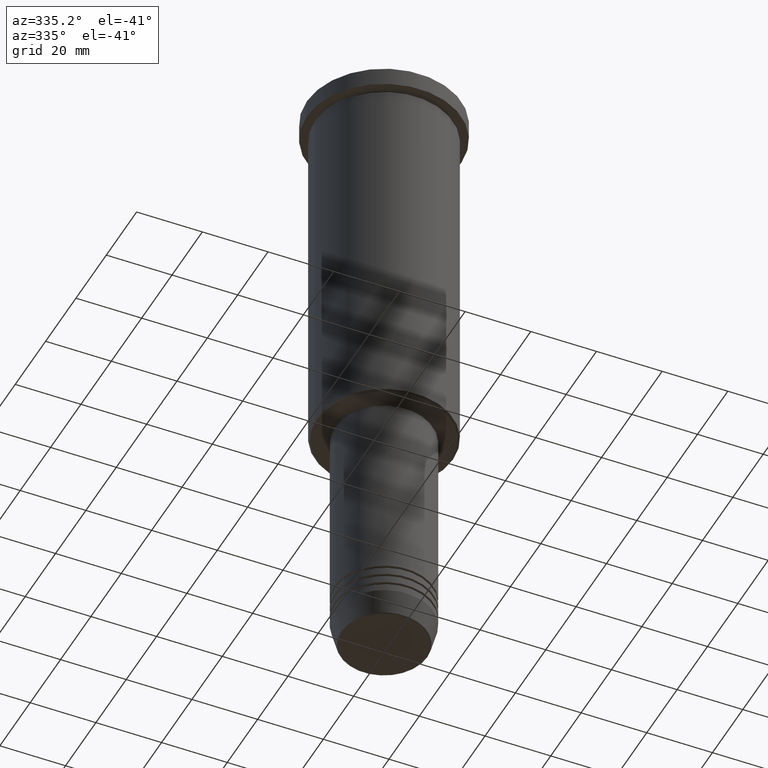
[diagram: clean part render]
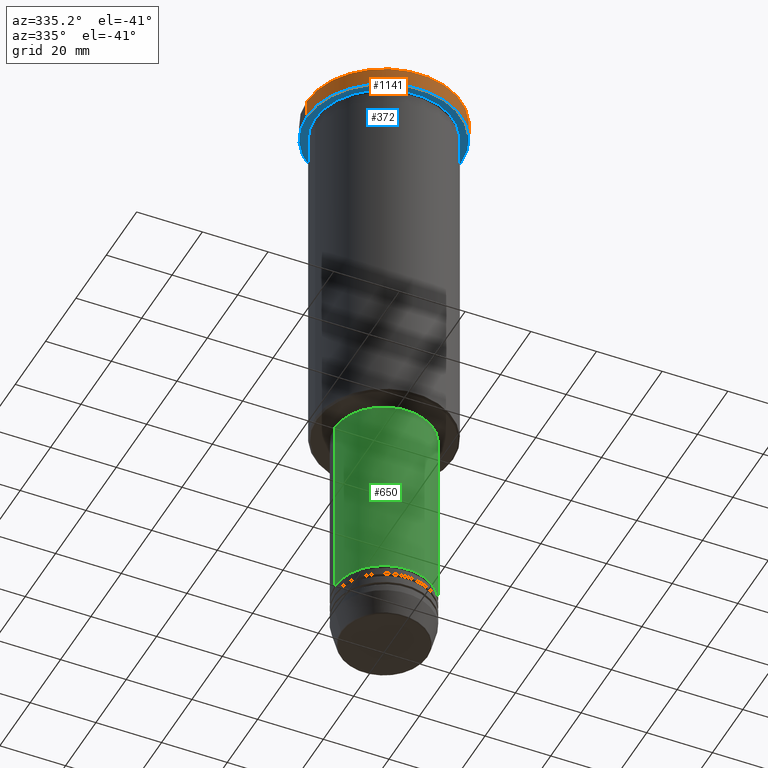
[diagram: same view with three faces highlighted in distinct colors, each labeled with its STEP entity id]
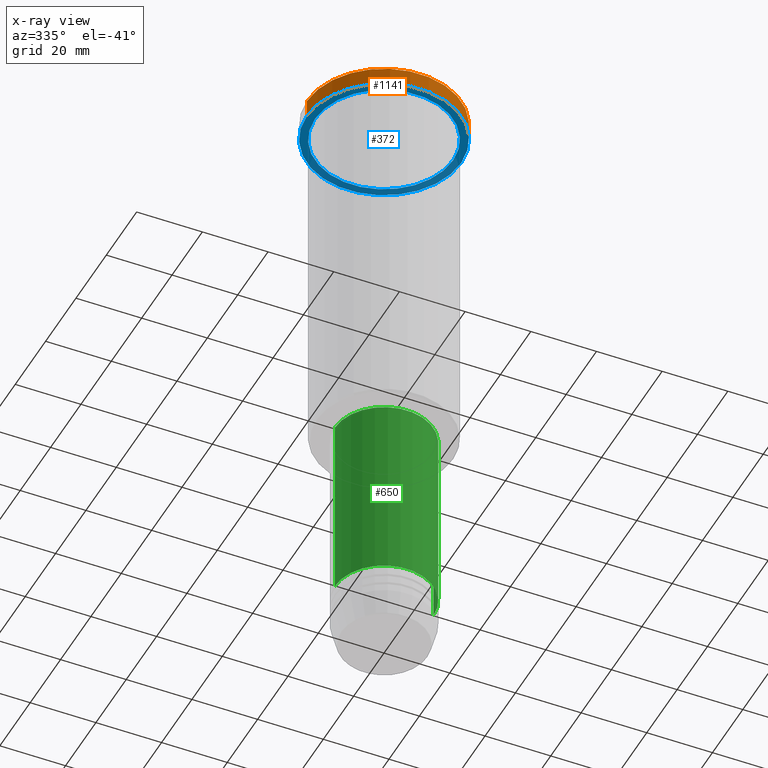
[diagram: x-ray of the same camera — body ghosted, the three highlighted faces saturated]
A machine part, auxiliary view with three faces highlighted in distinct colors.
The next image is the same camera in x-ray (body ghosted, the three faces saturated) — at least one of them is partly hidden behind the body in this view.
Their STEP definitions:

[orange] entity #1141 — the highlighted cylindrical surface (partial cylindrical patch) has radius 23.5 mm, axis along (-0, -0, 1).
#16 = DIRECTION ( 'NONE',  ( -0.000000000000000000, -0.000000000000000000, 1.000000000000000000 ) ) ;
#86 = CARTESIAN_POINT ( 'NONE',  ( 0.000000000000000000, 0.000000000000000000, -5.999999999999994671 ) ) ;
#112 = FACE_OUTER_BOUND ( 'NONE', #772, .T. ) ;
#139 = EDGE_CURVE ( 'NONE', #1151, #913, #203, .T. ) ;
#156 = DIRECTION ( 'NONE',  ( -0.000000000000000000, -0.000000000000000000, 1.000000000000000000 ) ) ;
#203 = CIRCLE ( 'NONE', #1132, 23.50000000000000000 ) ;
#215 = CARTESIAN_POINT ( 'NONE',  ( 0.000000000000000000, 0.000000000000000000, 0.000000000000000000 ) ) ;
#217 = CARTESIAN_POINT ( 'NONE',  ( 0.000000000000000000, 0.000000000000000000, -0.5000000000000281997 ) ) ;
#282 = DIRECTION ( 'NONE',  ( 1.000000000000000000, 0.000000000000000000, 0.000000000000000000 ) ) ;
#315 = AXIS2_PLACEMENT_3D ( 'NONE', #217, #491, #783 ) ;
#326 = EDGE_CURVE ( 'NONE', #654, #1161, #621, .T. ) ;
#364 = ORIENTED_EDGE ( 'NONE', *, *, #1063, .F. ) ;
#369 = CARTESIAN_POINT ( 'NONE',  ( -23.50000000000000000, 2.877919977996280320E-15, 0.000000000000000000 ) ) ;
#393 = CARTESIAN_POINT ( 'NONE',  ( -23.50000000000000000, 2.877919977996280320E-15, -5.999999999999994671 ) ) ;
#458 = DIRECTION ( 'NONE',  ( 1.000000000000000000, 0.000000000000000000, 0.000000000000000000 ) ) ;
#464 = CARTESIAN_POINT ( 'NONE',  ( -23.50000000000000000, 2.877919977996280320E-15, -0.5000000000000281997 ) ) ;
#474 = AXIS2_PLACEMENT_3D ( 'NONE', #215, #825, #458 ) ;
#476 = ORIENTED_EDGE ( 'NONE', *, *, #326, .T. ) ;
#482 = CYLINDRICAL_SURFACE ( 'NONE', #474, 23.50000000000000000 ) ;
#491 = DIRECTION ( 'NONE',  ( 0.000000000000000000, 0.000000000000000000, -1.000000000000000000 ) ) ;
#554 = LINE ( 'NONE', #369, #960 ) ;
#621 = CIRCLE ( 'NONE', #315, 23.50000000000000000 ) ;
#654 = VERTEX_POINT ( 'NONE', #855 ) ;
#745 = VECTOR ( 'NONE', #156, 1000.000000000000000 ) ;
#772 = EDGE_LOOP ( 'NONE', ( #364, #811, #790, #476 ) ) ;
#783 = DIRECTION ( 'NONE',  ( 1.000000000000000000, 0.000000000000000000, 0.000000000000000000 ) ) ;
#790 = ORIENTED_EDGE ( 'NONE', *, *, #1009, .T. ) ;
#811 = ORIENTED_EDGE ( 'NONE', *, *, #139, .T. ) ;
#825 = DIRECTION ( 'NONE',  ( -0.000000000000000000, -0.000000000000000000, 1.000000000000000000 ) ) ;
#855 = CARTESIAN_POINT ( 'NONE',  ( 23.50000000000000000, 0.000000000000000000, -0.5000000000000281997 ) ) ;
#893 = DIRECTION ( 'NONE',  ( -0.000000000000000000, -0.000000000000000000, 1.000000000000000000 ) ) ;
#913 = VERTEX_POINT ( 'NONE', #1166 ) ;
#960 = VECTOR ( 'NONE', #16, 1000.000000000000000 ) ;
#967 = CARTESIAN_POINT ( 'NONE',  ( 23.50000000000000000, 0.000000000000000000, 0.000000000000000000 ) ) ;
#1009 = EDGE_CURVE ( 'NONE', #913, #654, #1059, .T. ) ;
#1059 = LINE ( 'NONE', #967, #745 ) ;
#1063 = EDGE_CURVE ( 'NONE', #1151, #1161, #554, .T. ) ;
#1132 = AXIS2_PLACEMENT_3D ( 'NONE', #86, #893, #282 ) ;
#1141 = ADVANCED_FACE ( 'NONE', ( #112 ), #482, .T. ) ;
#1151 = VERTEX_POINT ( 'NONE', #393 ) ;
#1161 = VERTEX_POINT ( 'NONE', #464 ) ;
#1166 = CARTESIAN_POINT ( 'NONE',  ( 23.50000000000000000, 0.000000000000000000, -5.999999999999994671 ) ) ;

[blue] entity #372 — the highlighted planar face has unit normal (0, 0, -1).
#4 = DIRECTION ( 'NONE',  ( -0.000000000000000000, -0.000000000000000000, 1.000000000000000000 ) ) ;
#49 = FACE_BOUND ( 'NONE', #253, .T. ) ;
#82 = CIRCLE ( 'NONE', #816, 23.50000000000000000 ) ;
#86 = CARTESIAN_POINT ( 'NONE',  ( 0.000000000000000000, 0.000000000000000000, -5.999999999999994671 ) ) ;
#132 = DIRECTION ( 'NONE',  ( -0.000000000000000000, -0.000000000000000000, 1.000000000000000000 ) ) ;
#139 = EDGE_CURVE ( 'NONE', #1151, #913, #203, .T. ) ;
#193 = EDGE_LOOP ( 'NONE', ( #618, #433 ) ) ;
#203 = CIRCLE ( 'NONE', #1132, 23.50000000000000000 ) ;
#224 = AXIS2_PLACEMENT_3D ( 'NONE', #1075, #4, #1082 ) ;
#247 = CARTESIAN_POINT ( 'NONE',  ( 0.000000000000000000, 0.000000000000000000, -5.999999999999994671 ) ) ;
#253 = EDGE_LOOP ( 'NONE', ( #440, #455 ) ) ;
#264 = CARTESIAN_POINT ( 'NONE',  ( -21.00000000000000000, 0.000000000000000000, -5.999999999999994671 ) ) ;
#282 = DIRECTION ( 'NONE',  ( 1.000000000000000000, 0.000000000000000000, 0.000000000000000000 ) ) ;
#342 = CARTESIAN_POINT ( 'NONE',  ( 0.000000000000000000, 23.50000000000000000, -5.999999999999994671 ) ) ;
#372 = ADVANCED_FACE ( 'NONE', ( #49, #606 ), #949, .T. ) ;
#393 = CARTESIAN_POINT ( 'NONE',  ( -23.50000000000000000, 2.877919977996280320E-15, -5.999999999999994671 ) ) ;
#394 = AXIS2_PLACEMENT_3D ( 'NONE', #342, #612, #694 ) ;
#424 = DIRECTION ( 'NONE',  ( -0.000000000000000000, -0.000000000000000000, 1.000000000000000000 ) ) ;
#433 = ORIENTED_EDGE ( 'NONE', *, *, #139, .F. ) ;
#440 = ORIENTED_EDGE ( 'NONE', *, *, #777, .T. ) ;
#441 = EDGE_CURVE ( 'NONE', #913, #1151, #82, .T. ) ;
#455 = ORIENTED_EDGE ( 'NONE', *, *, #580, .T. ) ;
#529 = CIRCLE ( 'NONE', #1114, 21.00000000000000000 ) ;
#580 = EDGE_CURVE ( 'NONE', #1043, #950, #957, .T. ) ;
#606 = FACE_OUTER_BOUND ( 'NONE', #193, .T. ) ;
#612 = DIRECTION ( 'NONE',  ( 0.000000000000000000, 0.000000000000000000, -1.000000000000000000 ) ) ;
#618 = ORIENTED_EDGE ( 'NONE', *, *, #441, .F. ) ;
#620 = CARTESIAN_POINT ( 'NONE',  ( 21.00000000000000000, 2.571758278209441661E-15, -5.999999999999994671 ) ) ;
#694 = DIRECTION ( 'NONE',  ( -1.000000000000000000, 0.000000000000000000, -0.000000000000000000 ) ) ;
#777 = EDGE_CURVE ( 'NONE', #950, #1043, #529, .T. ) ;
#788 = CARTESIAN_POINT ( 'NONE',  ( 0.000000000000000000, 0.000000000000000000, -5.999999999999994671 ) ) ;
#800 = DIRECTION ( 'NONE',  ( 1.000000000000000000, 0.000000000000000000, 0.000000000000000000 ) ) ;
#816 = AXIS2_PLACEMENT_3D ( 'NONE', #788, #424, #800 ) ;
#893 = DIRECTION ( 'NONE',  ( -0.000000000000000000, -0.000000000000000000, 1.000000000000000000 ) ) ;
#913 = VERTEX_POINT ( 'NONE', #1166 ) ;
#945 = DIRECTION ( 'NONE',  ( -1.000000000000000000, 0.000000000000000000, 0.000000000000000000 ) ) ;
#949 = PLANE ( 'NONE',  #394 ) ;
#950 = VERTEX_POINT ( 'NONE', #264 ) ;
#957 = CIRCLE ( 'NONE', #224, 21.00000000000000000 ) ;
#1043 = VERTEX_POINT ( 'NONE', #620 ) ;
#1075 = CARTESIAN_POINT ( 'NONE',  ( 0.000000000000000000, 0.000000000000000000, -5.999999999999994671 ) ) ;
#1082 = DIRECTION ( 'NONE',  ( -1.000000000000000000, 0.000000000000000000, 0.000000000000000000 ) ) ;
#1114 = AXIS2_PLACEMENT_3D ( 'NONE', #247, #132, #945 ) ;
#1132 = AXIS2_PLACEMENT_3D ( 'NONE', #86, #893, #282 ) ;
#1151 = VERTEX_POINT ( 'NONE', #393 ) ;
#1166 = CARTESIAN_POINT ( 'NONE',  ( 23.50000000000000000, 0.000000000000000000, -5.999999999999994671 ) ) ;

[green] entity #650 — the highlighted cylindrical surface (partial cylindrical patch) has radius 15 mm, axis along (-0, -0, 1).
#9 = DIRECTION ( 'NONE',  ( 1.000000000000000000, 0.000000000000000000, 0.000000000000000000 ) ) ;
#45 = VECTOR ( 'NONE', #815, 1000.000000000000000 ) ;
#67 = EDGE_LOOP ( 'NONE', ( #946, #795, #898, #1162 ) ) ;
#164 = CIRCLE ( 'NONE', #185, 15.00000000000000000 ) ;
#185 = AXIS2_PLACEMENT_3D ( 'NONE', #505, #602, #686 ) ;
#211 = CARTESIAN_POINT ( 'NONE',  ( 0.000000000000000000, 0.000000000000000000, 0.000000000000000000 ) ) ;
#223 = DIRECTION ( 'NONE',  ( -0.000000000000000000, -0.000000000000000000, 1.000000000000000000 ) ) ;
#256 = LINE ( 'NONE', #366, #45 ) ;
#261 = EDGE_CURVE ( 'NONE', #1068, #775, #466, .T. ) ;
#273 = CARTESIAN_POINT ( 'NONE',  ( 0.000000000000000000, 0.000000000000000000, -175.0000000000000000 ) ) ;
#325 = VERTEX_POINT ( 'NONE', #658 ) ;
#328 = CARTESIAN_POINT ( 'NONE',  ( -15.00000000000000000, 1.836970198721029589E-15, -117.0000000000000142 ) ) ;
#334 = CARTESIAN_POINT ( 'NONE',  ( 15.00000000000000000, 0.000000000000000000, -117.0000000000000142 ) ) ;
#366 = CARTESIAN_POINT ( 'NONE',  ( -15.00000000000000000, 1.836970198721029589E-15, 0.000000000000000000 ) ) ;
#450 = AXIS2_PLACEMENT_3D ( 'NONE', #273, #911, #1065 ) ;
#466 = LINE ( 'NONE', #757, #1152 ) ;
#470 = CARTESIAN_POINT ( 'NONE',  ( 15.00000000000000000, 0.000000000000000000, -175.0000000000000000 ) ) ;
#478 = DIRECTION ( 'NONE',  ( -0.000000000000000000, -0.000000000000000000, 1.000000000000000000 ) ) ;
#505 = CARTESIAN_POINT ( 'NONE',  ( 0.000000000000000000, 0.000000000000000000, -117.0000000000000142 ) ) ;
#510 = EDGE_CURVE ( 'NONE', #325, #875, #256, .T. ) ;
#519 = EDGE_CURVE ( 'NONE', #325, #1068, #1014, .T. ) ;
#545 = AXIS2_PLACEMENT_3D ( 'NONE', #211, #478, #9 ) ;
#602 = DIRECTION ( 'NONE',  ( -0.000000000000000000, -0.000000000000000000, 1.000000000000000000 ) ) ;
#650 = ADVANCED_FACE ( 'NONE', ( #747 ), #1109, .T. ) ;
#658 = CARTESIAN_POINT ( 'NONE',  ( -15.00000000000000000, 1.836970198721029589E-15, -175.0000000000000000 ) ) ;
#686 = DIRECTION ( 'NONE',  ( 1.000000000000000000, 0.000000000000000000, 0.000000000000000000 ) ) ;
#747 = FACE_OUTER_BOUND ( 'NONE', #67, .T. ) ;
#757 = CARTESIAN_POINT ( 'NONE',  ( 15.00000000000000000, 0.000000000000000000, 0.000000000000000000 ) ) ;
#775 = VERTEX_POINT ( 'NONE', #334 ) ;
#795 = ORIENTED_EDGE ( 'NONE', *, *, #519, .T. ) ;
#815 = DIRECTION ( 'NONE',  ( -0.000000000000000000, -0.000000000000000000, 1.000000000000000000 ) ) ;
#859 = EDGE_CURVE ( 'NONE', #875, #775, #164, .T. ) ;
#875 = VERTEX_POINT ( 'NONE', #328 ) ;
#898 = ORIENTED_EDGE ( 'NONE', *, *, #261, .T. ) ;
#911 = DIRECTION ( 'NONE',  ( -0.000000000000000000, -0.000000000000000000, 1.000000000000000000 ) ) ;
#946 = ORIENTED_EDGE ( 'NONE', *, *, #510, .F. ) ;
#1014 = CIRCLE ( 'NONE', #450, 15.00000000000000000 ) ;
#1065 = DIRECTION ( 'NONE',  ( 1.000000000000000000, 0.000000000000000000, 0.000000000000000000 ) ) ;
#1068 = VERTEX_POINT ( 'NONE', #470 ) ;
#1109 = CYLINDRICAL_SURFACE ( 'NONE', #545, 15.00000000000000000 ) ;
#1152 = VECTOR ( 'NONE', #223, 1000.000000000000000 ) ;
#1162 = ORIENTED_EDGE ( 'NONE', *, *, #859, .F. ) ;